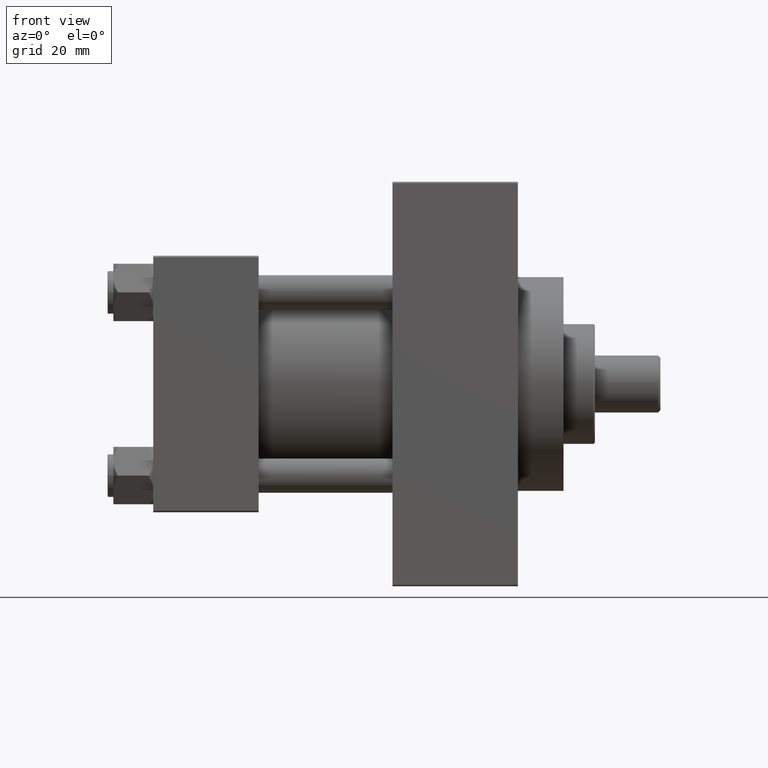
[diagram: clean part render]
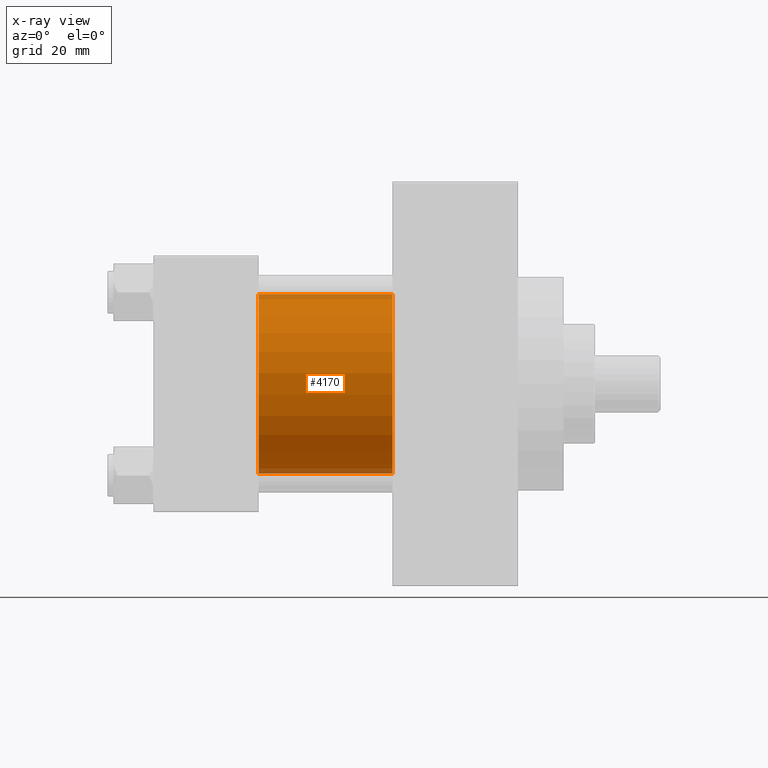
[diagram: x-ray — body ghosted, one internal face saturated and labeled with its STEP entity id]
A machine part, front view, then the same camera in x-ray: the body is ghosted and one INTERNAL B-rep face — a face not visible from any outside direction — is saturated and labeled: STEP entity #4170.
In plain terms, the highlighted cylindrical surface (partial cylindrical patch) has radius 31.5 mm, axis along (-1, -0, -0).
Its self-contained STEP definition (entity closure, byte-faithful):
#1328 = FACE_OUTER_BOUND ( 'NONE', #40430, .T. ) ;
#1710 = DIRECTION ( 'NONE',  ( 0.000000000000000000, 0.000000000000000000, -1.000000000000000000 ) ) ;
#2497 = ORIENTED_EDGE ( 'NONE', *, *, #8677, .T. ) ;
#3441 = VERTEX_POINT ( 'NONE', #17707 ) ;
#4170 = ADVANCED_FACE ( 'NONE', ( #1328 ), #30974, .F. ) ;
#8291 = ORIENTED_EDGE ( 'NONE', *, *, #23148, .T. ) ;
#8379 = AXIS2_PLACEMENT_3D ( 'NONE', #12558, #30883, #1710 ) ;
#8677 = EDGE_CURVE ( 'NONE', #15560, #3441, #18195, .T. ) ;
#10178 = VECTOR ( 'NONE', #26526, 1000.000000000000000 ) ;
#10762 = EDGE_CURVE ( 'NONE', #15560, #29752, #15719, .T. ) ;
#11808 = CARTESIAN_POINT ( 'NONE',  ( 83.99999999999998579, 1.255552203348951850E-15, -31.50000000000000000 ) ) ;
#12096 = DIRECTION ( 'NONE',  ( -1.000000000000000000, -0.000000000000000000, -0.000000000000000000 ) ) ;
#12558 = CARTESIAN_POINT ( 'NONE',  ( 37.00000000000000000, -2.602085213965210642E-15, 0.000000000000000000 ) ) ;
#12658 = DIRECTION ( 'NONE',  ( 0.000000000000000000, 0.000000000000000000, 1.000000000000000000 ) ) ;
#14217 = CARTESIAN_POINT ( 'NONE',  ( 83.99999999999998579, -2.602085213965210642E-15, 31.50000000000000000 ) ) ;
#15560 = VERTEX_POINT ( 'NONE', #14217 ) ;
#15719 = LINE ( 'NONE', #30419, #32902 ) ;
#17707 = CARTESIAN_POINT ( 'NONE',  ( 83.99999999999998579, 1.255552203348951850E-15, -31.50000000000000000 ) ) ;
#18195 = CIRCLE ( 'NONE', #45136, 31.50000000000000000 ) ;
#23148 = EDGE_CURVE ( 'NONE', #3441, #37889, #38093, .T. ) ;
#26526 = DIRECTION ( 'NONE',  ( -1.000000000000000000, -0.000000000000000000, -0.000000000000000000 ) ) ;
#28488 = ORIENTED_EDGE ( 'NONE', *, *, #46793, .F. ) ;
#29699 = CARTESIAN_POINT ( 'NONE',  ( 83.99999999999998579, -2.602085213965210642E-15, 0.000000000000000000 ) ) ;
#29752 = VERTEX_POINT ( 'NONE', #33582 ) ;
#30398 = DIRECTION ( 'NONE',  ( 0.000000000000000000, 0.000000000000000000, -1.000000000000000000 ) ) ;
#30419 = CARTESIAN_POINT ( 'NONE',  ( 83.99999999999998579, -2.602085213965210642E-15, 31.50000000000000000 ) ) ;
#30738 = DIRECTION ( 'NONE',  ( -1.000000000000000000, -0.000000000000000000, -0.000000000000000000 ) ) ;
#30883 = DIRECTION ( 'NONE',  ( 1.000000000000000000, 0.000000000000000000, 0.000000000000000000 ) ) ;
#30974 = CYLINDRICAL_SURFACE ( 'NONE', #43456, 31.50000000000000000 ) ;
#32902 = VECTOR ( 'NONE', #12096, 1000.000000000000000 ) ;
#33562 = DIRECTION ( 'NONE',  ( 1.000000000000000000, 0.000000000000000000, 0.000000000000000000 ) ) ;
#33582 = CARTESIAN_POINT ( 'NONE',  ( 37.00000000000000000, -2.602085213965210642E-15, 31.50000000000000000 ) ) ;
#36128 = CIRCLE ( 'NONE', #8379, 31.50000000000000000 ) ;
#37889 = VERTEX_POINT ( 'NONE', #45772 ) ;
#38093 = LINE ( 'NONE', #11808, #10178 ) ;
#38590 = ORIENTED_EDGE ( 'NONE', *, *, #10762, .F. ) ;
#40430 = EDGE_LOOP ( 'NONE', ( #2497, #8291, #28488, #38590 ) ) ;
#43456 = AXIS2_PLACEMENT_3D ( 'NONE', #45676, #30738, #12658 ) ;
#45136 = AXIS2_PLACEMENT_3D ( 'NONE', #29699, #33562, #30398 ) ;
#45676 = CARTESIAN_POINT ( 'NONE',  ( 83.99999999999998579, -2.602085213965210642E-15, 0.000000000000000000 ) ) ;
#45772 = CARTESIAN_POINT ( 'NONE',  ( 37.00000000000000000, 1.255552203348951850E-15, -31.50000000000000000 ) ) ;
#46793 = EDGE_CURVE ( 'NONE', #29752, #37889, #36128, .T. ) ;